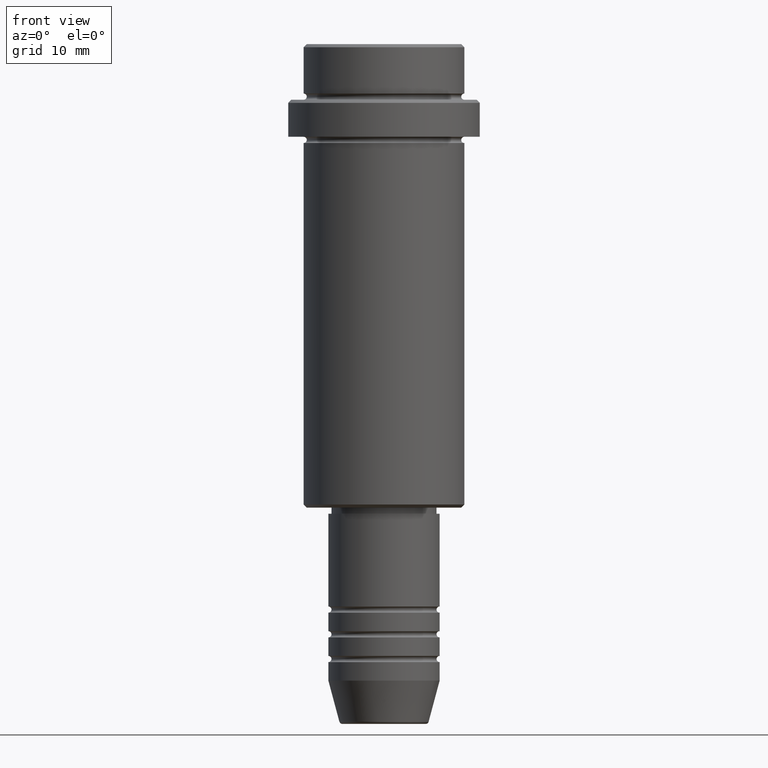
[diagram: clean part render]
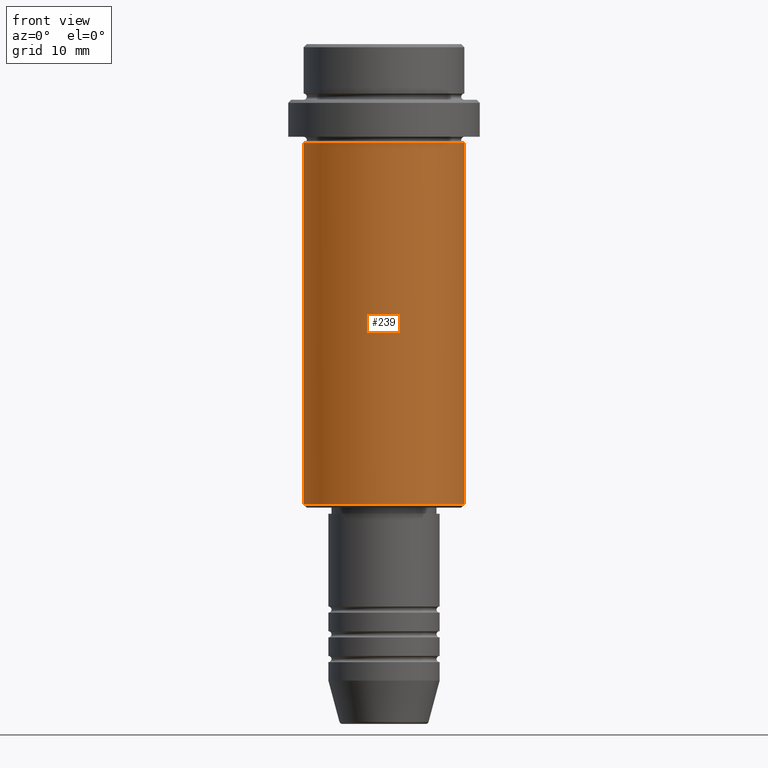
[diagram: same view with one face highlighted and labeled with its STEP entity id]
A machine part, front view. The second image highlights one B-rep face of the part: STEP entity #239.
In plain terms, the highlighted cylindrical surface (partial cylindrical patch) has radius 13 mm, axis along (-0, -0, 1).
Its self-contained STEP definition (entity closure, byte-faithful):
#28 = ORIENTED_EDGE ( 'NONE', *, *, #343, .T. ) ;
#44 = CARTESIAN_POINT ( 'NONE',  ( 0.000000000000000000, 0.000000000000000000, 0.000000000000000000 ) ) ;
#49 = CYLINDRICAL_SURFACE ( 'NONE', #473, 13.00000000000000000 ) ;
#67 = DIRECTION ( 'NONE',  ( -1.000000000000000000, 0.000000000000000000, 0.000000000000000000 ) ) ;
#82 = DIRECTION ( 'NONE',  ( -0.000000000000000000, -0.000000000000000000, 1.000000000000000000 ) ) ;
#146 = DIRECTION ( 'NONE',  ( -0.000000000000000000, -0.000000000000000000, 1.000000000000000000 ) ) ;
#225 = AXIS2_PLACEMENT_3D ( 'NONE', #828, #146, #379 ) ;
#239 = ADVANCED_FACE ( 'NONE', ( #1025 ), #49, .T. ) ;
#254 = ORIENTED_EDGE ( 'NONE', *, *, #383, .F. ) ;
#302 = LINE ( 'NONE', #1158, #954 ) ;
#320 = CARTESIAN_POINT ( 'NONE',  ( -13.00000000000000000, 1.592040838891559095E-15, -74.50000000000004263 ) ) ;
#321 = CARTESIAN_POINT ( 'NONE',  ( 13.00000000000000000, 0.000000000000000000, -74.50000000000004263 ) ) ;
#343 = EDGE_CURVE ( 'NONE', #1243, #1010, #1272, .T. ) ;
#379 = DIRECTION ( 'NONE',  ( 1.000000000000000000, 0.000000000000000000, 0.000000000000000000 ) ) ;
#383 = EDGE_CURVE ( 'NONE', #1243, #554, #302, .T. ) ;
#419 = CARTESIAN_POINT ( 'NONE',  ( 0.000000000000000000, 0.000000000000000000, -74.50000000000004263 ) ) ;
#473 = AXIS2_PLACEMENT_3D ( 'NONE', #44, #1346, #577 ) ;
#484 = LINE ( 'NONE', #1233, #749 ) ;
#508 = DIRECTION ( 'NONE',  ( -0.000000000000000000, -0.000000000000000000, 1.000000000000000000 ) ) ;
#554 = VERTEX_POINT ( 'NONE', #1295 ) ;
#577 = DIRECTION ( 'NONE',  ( 1.000000000000000000, 0.000000000000000000, 0.000000000000000000 ) ) ;
#638 = CIRCLE ( 'NONE', #225, 13.00000000000000000 ) ;
#669 = EDGE_CURVE ( 'NONE', #1010, #1230, #484, .T. ) ;
#714 = ORIENTED_EDGE ( 'NONE', *, *, #669, .T. ) ;
#749 = VECTOR ( 'NONE', #1128, 1000.000000000000000 ) ;
#828 = CARTESIAN_POINT ( 'NONE',  ( 0.000000000000000000, 0.000000000000000000, -16.00000000000000000 ) ) ;
#941 = ORIENTED_EDGE ( 'NONE', *, *, #1138, .F. ) ;
#952 = EDGE_LOOP ( 'NONE', ( #254, #28, #714, #941 ) ) ;
#954 = VECTOR ( 'NONE', #82, 1000.000000000000000 ) ;
#1010 = VERTEX_POINT ( 'NONE', #321 ) ;
#1025 = FACE_OUTER_BOUND ( 'NONE', #952, .T. ) ;
#1128 = DIRECTION ( 'NONE',  ( -0.000000000000000000, -0.000000000000000000, 1.000000000000000000 ) ) ;
#1138 = EDGE_CURVE ( 'NONE', #554, #1230, #638, .T. ) ;
#1158 = CARTESIAN_POINT ( 'NONE',  ( -13.00000000000000000, 1.592040838891559095E-15, 0.000000000000000000 ) ) ;
#1164 = AXIS2_PLACEMENT_3D ( 'NONE', #419, #508, #67 ) ;
#1230 = VERTEX_POINT ( 'NONE', #1406 ) ;
#1233 = CARTESIAN_POINT ( 'NONE',  ( 13.00000000000000000, 0.000000000000000000, 0.000000000000000000 ) ) ;
#1243 = VERTEX_POINT ( 'NONE', #320 ) ;
#1272 = CIRCLE ( 'NONE', #1164, 13.00000000000000000 ) ;
#1295 = CARTESIAN_POINT ( 'NONE',  ( -13.00000000000000000, 1.592040838891559095E-15, -16.00000000000000000 ) ) ;
#1346 = DIRECTION ( 'NONE',  ( -0.000000000000000000, -0.000000000000000000, 1.000000000000000000 ) ) ;
#1406 = CARTESIAN_POINT ( 'NONE',  ( 13.00000000000000000, 0.000000000000000000, -16.00000000000000000 ) ) ;